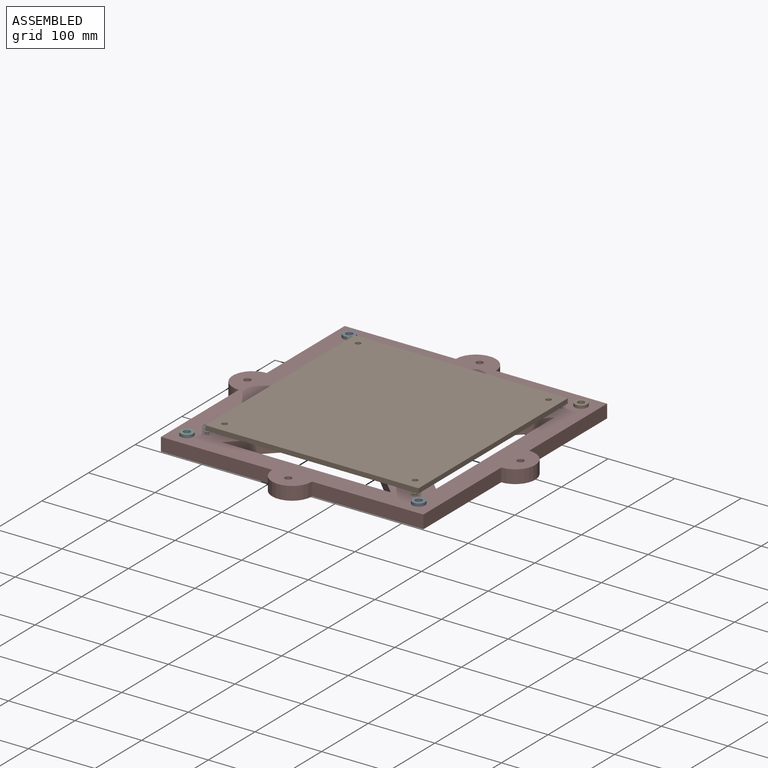
[diagram: assembled view]
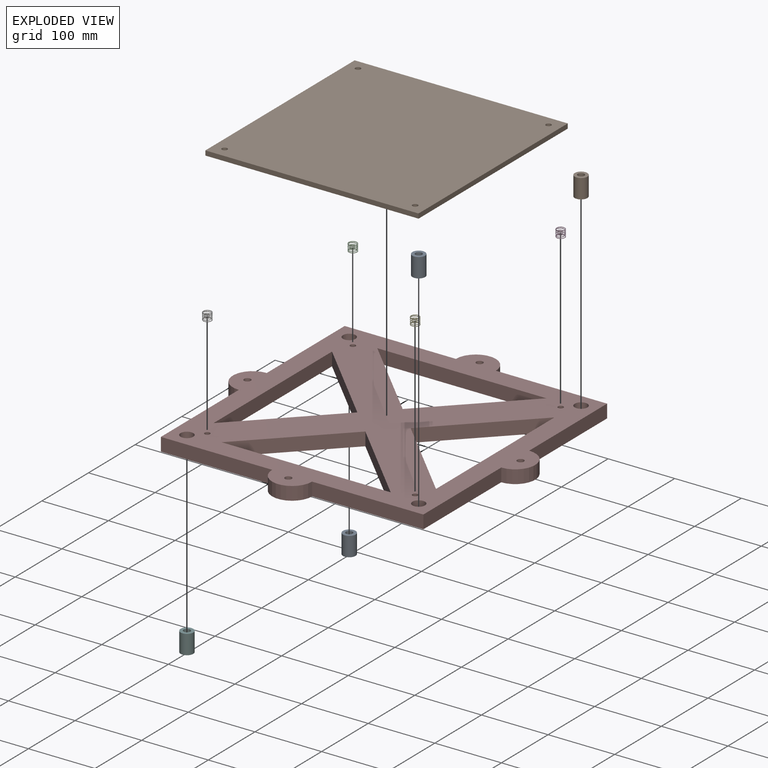
[diagram: exploded view]
GUIDED TOUR — MATED ASSEMBLY (Onshape document 34d37e86194ad98bb5d653fc, AutoMate assembly 34d37e86194ad98bb5d653fc_5240c168538feff160c941ff_869fe06d2fd48d454f6039a9_default)

This assembly has 10 components, labeled P0..P9 below (a component is one placed occurrence of a part; the same part can appear more than once), held together by 9 mates. A mate is a constraint between two components; its type names the relative motion it leaves free:
  FASTENED — locks the two components together rigidly (no relative motion).
Axis/direction vectors are unit vectors and 'through' points are millimeter coordinates, both in the assembly's world frame.

MATES
  1. FASTENED "Fastened 2": P4 <-> P7, direction (0.000, 0.000, 1.000) through (40.16, -156.63, 29.33) mm
  2. FASTENED "Fastened 1": P8 <-> P7, direction (0.000, 0.000, 1.000) through (-289.84, 173.37, 19.33) mm
  3. FASTENED "Fastened 3": P1 <-> P4, direction (0.000, 0.000, -1.000) through (40.16, -156.63, 39.33) mm
  4. FASTENED "Fastened 2": P3 <-> P7, direction (0.000, 0.000, 1.000) through (40.16, 155.37, 29.33) mm
  5. FASTENED "Fastened 1": P5 <-> P7, direction (0.000, 0.000, 1.000) through (-289.84, -174.63, 19.33) mm
  6. FASTENED "Fastened 2": P6 <-> P7, direction (0.000, 0.000, 1.000) through (-271.84, -156.63, 29.33) mm
  7. FASTENED "Fastened 2": P2 <-> P7, direction (0.000, 0.000, 1.000) through (-271.84, 155.37, 29.33) mm
  8. FASTENED "Fastened 1": P9 <-> P7, direction (0.000, 0.000, 1.000) through (58.16, 173.37, 19.33) mm
  9. FASTENED "Fastened 1": P0 <-> P7, direction (0.000, 0.000, 1.000) through (58.16, -174.63, 19.33) mm

ASSEMBLY ORDER
  1. P7 — the base component [order verified]
  2. P8 [order verified]
  3. P5 [order verified]
  4. P9 [order verified]
  5. P0 [order verified]
  6. P4 [order verified]
  7. P3 [order verified]
  8. P6 [order verified]
  9. P2 [order verified]
  10. P1 [order verified]
Order-tag legend:
  [order verified] — this step's position reverses a verified removal order: the component was checked to insert without passing through the ones already placed.

Of the 10 components, 6 carry the full construction recipe — the FeatureScript program that regenerates the part's solid from scratch; the rest are supplied as boundary geometry only.
Each toured component is shown spotlighted twice — in the assembled view, then in the exploded view, where a leader line traces a displaced component back to its assembled socket (saturated green if recipe-attached, orange if geometry-only; every other component desaturated gray) — followed by its recipe or geometry summary and the mates that hold it.
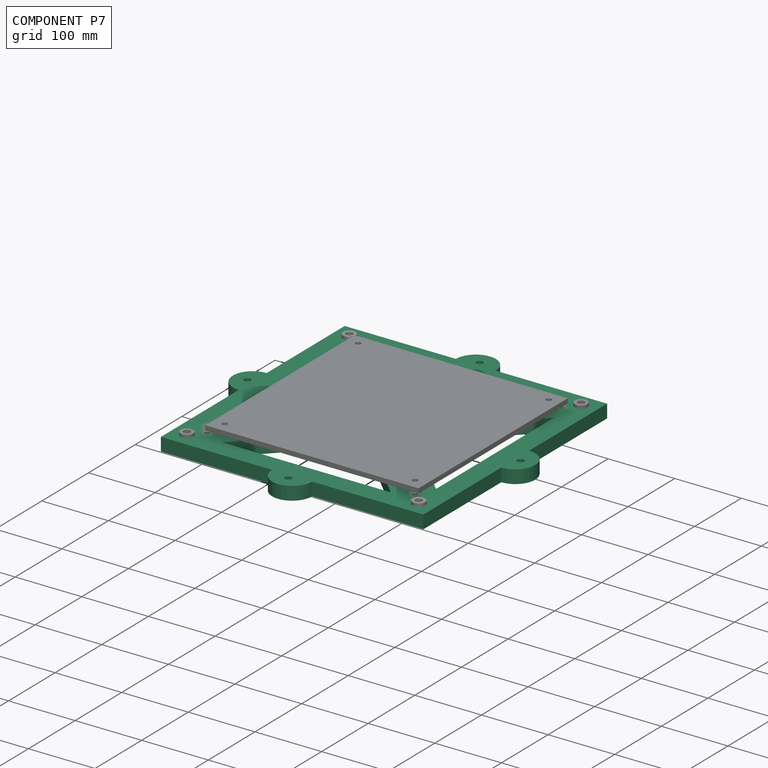
[diagram: component P7 — assembled]
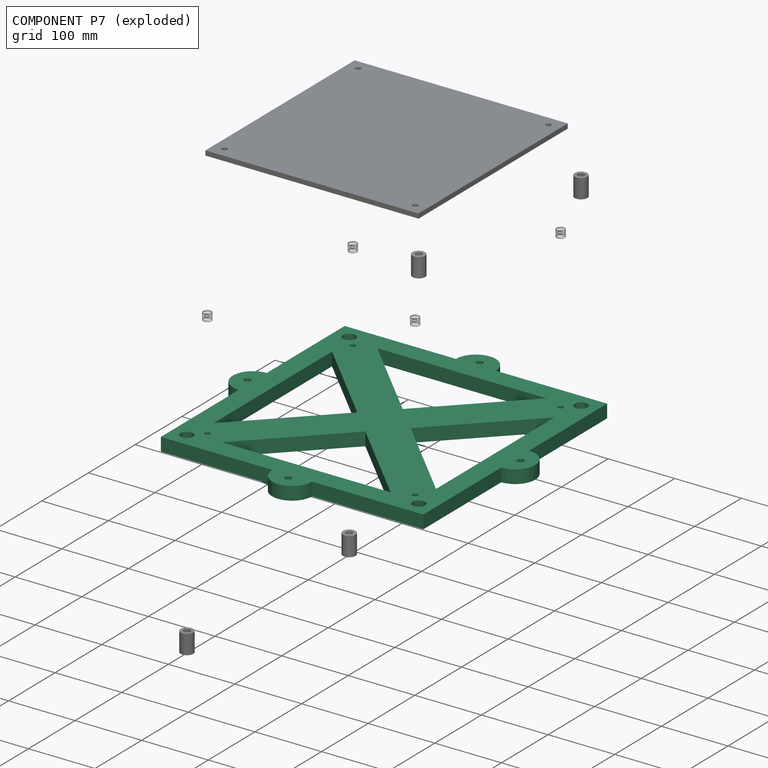
[diagram: component P7 — exploded]
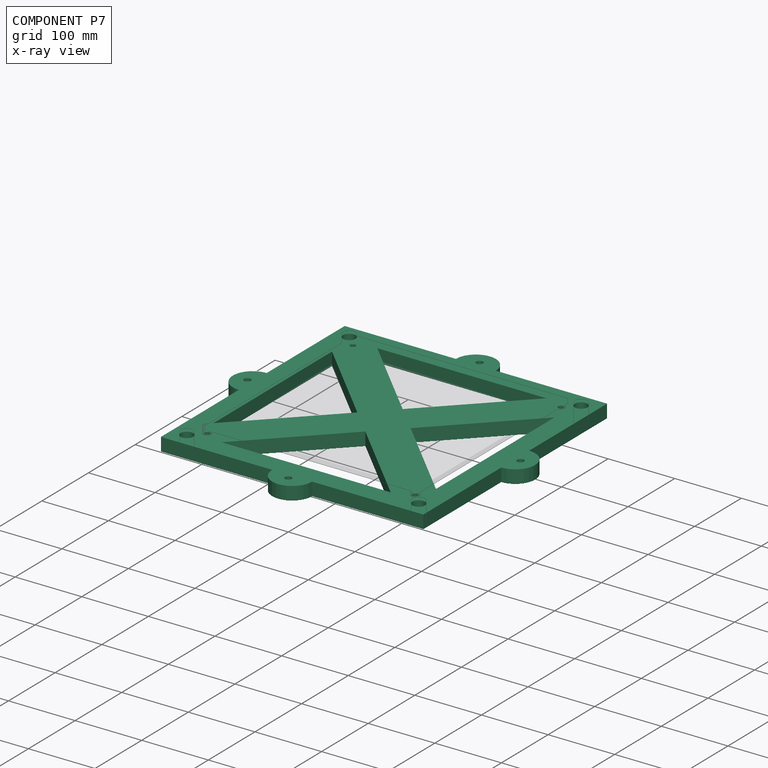
[diagram: component P7 — x-ray view]
COMPONENT P7 — recipe-attached (CADFS 00890142, mesh-verified: the recipe's output STEP matches this component's geometry to below the mesh-comparison resolution (tessellation chordal tolerance ~0.963 mm)).
Held by: FASTENED mate "Fastened 2" to P4; FASTENED mate "Fastened 1" to P8; FASTENED mate "Fastened 2" to P3; FASTENED mate "Fastened 1" to P5; FASTENED mate "Fastened 2" to P6; FASTENED mate "Fastened 2" to P2; FASTENED mate "Fastened 1" to P9; FASTENED mate "Fastened 1" to P0.
Construction recipe (FeatureScript — the CAD program that rebuilds this solid; sketch coordinates are in the units given by the * unit suffixes, e.g. mm):

FeatureScript 1540;
import(path : "onshape/std/geometry.fs", version : "1540.0");
import(path : "onshape/std/common.fs", version : "1540.0");
const mm = millimeter;
const VERTEX = EntityType.VERTEX;
const EDGE = EntityType.EDGE;
const FACE = EntityType.FACE;
const BODY = EntityType.BODY;
function v(x, y){return vector(x, y);}
function OD(order){return orderDisambiguation(order);}
function OSD(set){return originalSetDisambiguation(set);}
function TD(topology){return topologyDisambiguation(topology);}
function TDD(query){return trueDependencyDisambiguation(query);}
function sQuery(a, b, c) {return sketchEntityQuery(a, b, c);}

annotation { "Feature Type Name" : "Feature", "Feature Type Description" : "" }
export const myFeature = defineFeature(function(context is Context, id is Id, definition is map)
    precondition{}
    {
        {
            var Q0;
            Q0=qCreatedBy(makeId("Top.planeOp"),FACE);
            var sketch = newSketch(context, id + "F0", { "sketchPlane" : qUnion([Q0])});
            skLineSegment(sketch, "E0", {"start": v(-167, 127) * mm, "end": v(-127, 167) * mm});
            skLineSegment(sketch, "E1", {"start": v(-127, 167) * mm, "end": v(-127, 197) * mm});
            skLineSegment(sketch, "E2", {"start": v(-127, 197) * mm, "end": v(-197, 197) * mm});
            skLineSegment(sketch, "E3", {"start": v(-197, 197) * mm, "end": v(-197, 127) * mm});
            skLineSegment(sketch, "E4", {"start": v(-197, 127) * mm, "end": v(-167, 127) * mm});
            skCircle(sketch, "E5", {"center": v(-174, 174) * mm, "radius": 9.5 * mm});
            skCircle(sketch, "E6", {"center": v(-156, 156) * mm, "radius": 4 * mm});
            skLineSegment(sketch, "E7.MirrorCS", {"start": v(167, 127) * mm, "end": v(127, 167) * mm});
            skLineSegment(sketch, "E8.MirrorCS", {"start": v(127, 167) * mm, "end": v(127, 197) * mm});
            skLineSegment(sketch, "E9.MirrorCS", {"start": v(127, 197) * mm, "end": v(197, 197) * mm});
            skLineSegment(sketch, "E10.MirrorCS", {"start": v(197, 127) * mm, "end": v(167, 127) * mm});
            skLineSegment(sketch, "E11.MirrorCS", {"start": v(197, 197) * mm, "end": v(197, 127) * mm});
            skCircle(sketch, "E12.MirrorC", {"center": v(174, 174) * mm, "radius": 9.5 * mm});
            skCircle(sketch, "E13.MirrorC", {"center": v(156, 156) * mm, "radius": 4 * mm});
            skLineSegment(sketch, "E14.MirrorCS", {"start": v(127, -167) * mm, "end": v(127, -197) * mm});
            skLineSegment(sketch, "E15.MirrorCS", {"start": v(127, -197) * mm, "end": v(197, -197) * mm});
            skCircle(sketch, "E16.MirrorC", {"center": v(174, -174) * mm, "radius": 9.5 * mm});
            skCircle(sketch, "E17.MirrorC", {"center": v(156, -156) * mm, "radius": 4 * mm});
            skLineSegment(sketch, "E18.MirrorCS", {"start": v(167, -127) * mm, "end": v(127, -167) * mm});
            skLineSegment(sketch, "E19.MirrorCS", {"start": v(-127, -197) * mm, "end": v(-197, -197) * mm});
            skLineSegment(sketch, "E20.MirrorCS", {"start": v(-197, -127) * mm, "end": v(-167, -127) * mm});
            skCircle(sketch, "E21.MirrorC", {"center": v(-174, -174) * mm, "radius": 9.5 * mm});
            skCircle(sketch, "E22.MirrorC", {"center": v(-156, -156) * mm, "radius": 4 * mm});
            skLineSegment(sketch, "E23.MirrorCS", {"start": v(-197, -197) * mm, "end": v(-197, -127) * mm});
            skLineSegment(sketch, "E24.MirrorCS", {"start": v(-127, -167) * mm, "end": v(-127, -197) * mm});
            skLineSegment(sketch, "E25.MirrorCS", {"start": v(197, -127) * mm, "end": v(167, -127) * mm});
            skLineSegment(sketch, "E26.MirrorCS", {"start": v(197, -197) * mm, "end": v(197, -127) * mm});
            skLineSegment(sketch, "E27.MirrorCS", {"start": v(-167, -127) * mm, "end": v(-127, -167) * mm});
            skLineSegment(sketch, "E28", {"start": v(-197, 127) * mm, "end": v(-197, -127) * mm});
            skLineSegment(sketch, "E29", {"start": v(-167, 127) * mm, "end": v(-167, -127) * mm});
            skLineSegment(sketch, "E30", {"start": v(-127, 167) * mm, "end": v(127, 167) * mm});
            skLineSegment(sketch, "E31", {"start": v(-127, 197) * mm, "end": v(127, 197) * mm});
            skLineSegment(sketch, "E32", {"start": v(167, 127) * mm, "end": v(167, -127) * mm});
            skLineSegment(sketch, "E33", {"start": v(197, 127) * mm, "end": v(197, -127) * mm});
            skLineSegment(sketch, "E34", {"start": v(127, -167) * mm, "end": v(-127, -167) * mm});
            skLineSegment(sketch, "E35", {"start": v(-127, -197) * mm, "end": v(127, -197) * mm});
            skLineSegment(sketch, "E36", {"start": v(-167, 127) * mm, "end": v(127, -167) * mm});
            skLineSegment(sketch, "E37", {"start": v(-127, 167) * mm, "end": v(167, -127) * mm});
            skLineSegment(sketch, "E38", {"start": v(127, 167) * mm, "end": v(-167, -127) * mm});
            skLineSegment(sketch, "E39", {"start": v(167, 127) * mm, "end": v(-127, -167) * mm});
            skArc(sketch, "E40", {"start": v(-197, 30) * mm, "mid": v(-227, 0) * mm, "end": v(-197, -30) * mm});
            skArc(sketch, "E41.MirrorCS", {"start": v(197, 30) * mm, "mid": v(227, 0) * mm, "end": v(197, -30) * mm});
            skCircle(sketch, "E42", {"center": v(-205, 0) * mm, "radius": 5 * mm});
            skCircle(sketch, "E43.MirrorC", {"center": v(205, 0) * mm, "radius": 5 * mm});
            skArc(sketch, "E44", {"start": v(30, 197) * mm, "mid": v(0, 227) * mm, "end": v(-30, 197) * mm});
            skCircle(sketch, "E45", {"center": v(0, 205) * mm, "radius": 5 * mm});
            skArc(sketch, "E46.MirrorCS", {"start": v(30, -197) * mm, "mid": v(0, -227) * mm, "end": v(-30, -197) * mm});
            skCircle(sketch, "E47.MirrorC", {"center": v(0, -205) * mm, "radius": 5 * mm});
            skSolve(sketch);
        }
        {
            var Q0;
            Q0=qSketchRegion(id+"F0",true);
            var Q1;
            {var subQ0=sQuery(id+"F0.wireOp",EDGE,"E18.MirrorCS");Q1=makeQuery(id+"F0.imprint","IMPRINT",FACE,{"disambiguationData":[TD([[makeQuery(id+"F0.imprint","IMPRINT",EDGE,{"derivedFrom":subQ0}),-1.0]])]});}
            var Q2;
            {var subQ0=sQuery(id+"F0.wireOp",EDGE,"E27.MirrorCS");Q2=makeQuery(id+"F0.imprint","IMPRINT",FACE,{"disambiguationData":[TD([[makeQuery(id+"F0.imprint","IMPRINT",EDGE,{"derivedFrom":subQ0}),1.0]])]});}
            var Q3;
            {var subQ0=sQuery(id+"F0.wireOp",EDGE,"E0");Q3=makeQuery(id+"F0.imprint","IMPRINT",FACE,{"disambiguationData":[TD([[makeQuery(id+"F0.imprint","IMPRINT",EDGE,{"derivedFrom":subQ0}),-1.0]])]});}
            var Q4;
            {var subQ0=sQuery(id+"F0.wireOp",EDGE,"E38");var subQ1=sQuery(id+"F0.wireOp",EDGE,"E36");var subQ2=makeQuery(id+"F0.imprint","INTERSECT",VERTEX,{"derivedFrom":[subQ1,subQ0]});Q4=makeQuery(id+"F0.imprint","IMPRINT",FACE,{"disambiguationData":[TD([[makeQuery(id+"F0.imprint","IMPRINT",EDGE,{"disambiguationData":[TD([[subQ2,-1.0]])],"derivedFrom":subQ1}),1.0]])]});}
            var Q5;
            {var subQ0=sQuery(id+"F0.wireOp",EDGE,"E7.MirrorCS");Q5=makeQuery(id+"F0.imprint","IMPRINT",FACE,{"disambiguationData":[TD([[makeQuery(id+"F0.imprint","IMPRINT",EDGE,{"derivedFrom":subQ0}),1.0]])]});}
            extrude(context, id + "F1", {"entities" : qUnion([Q0, Q1, Q2, Q3, Q4, Q5]), "depth" : 20 * mm, "offsetDistance" : 25 * mm});
        }
    });
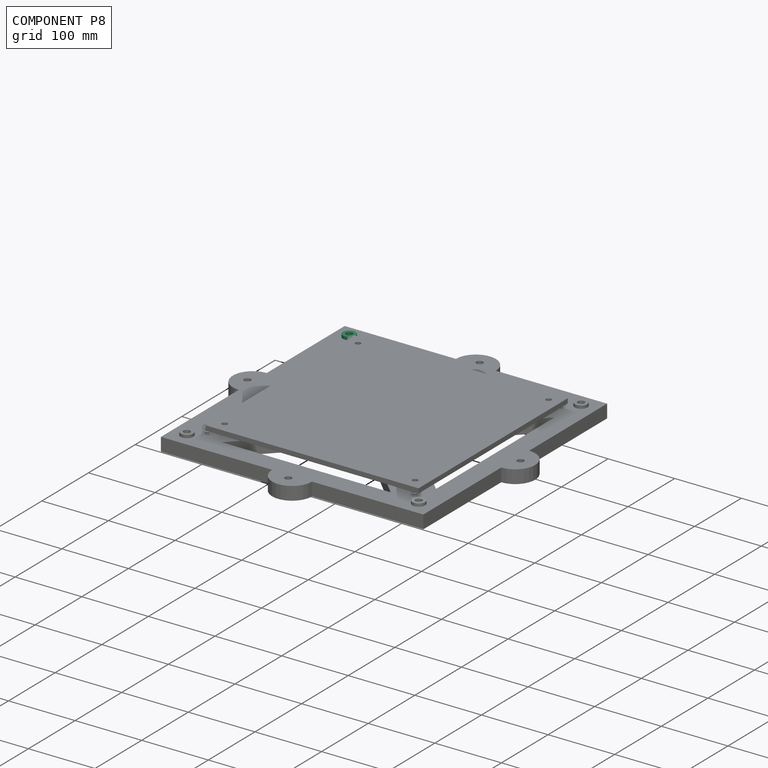
[diagram: component P8 — assembled]
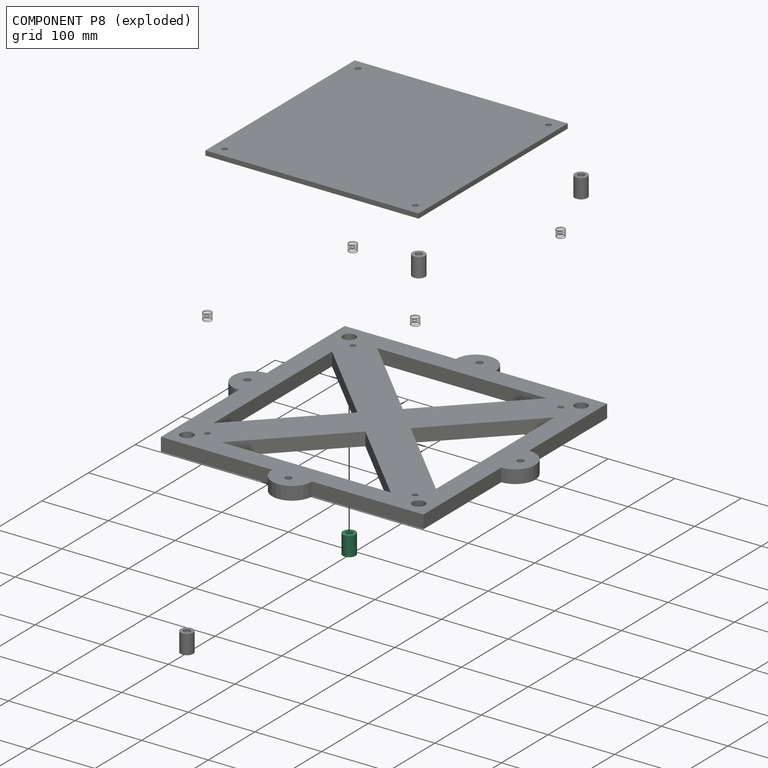
[diagram: component P8 — exploded]
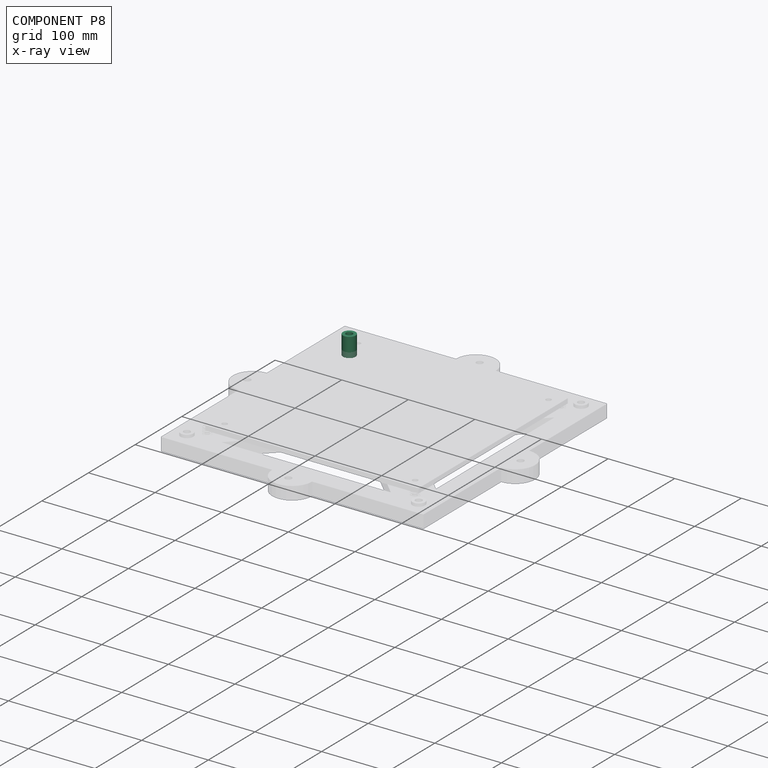
[diagram: component P8 — x-ray view]
COMPONENT P8 — same part as P0 (CADFS 00890148); its construction recipe is shown at P0.
Held by: FASTENED mate "Fastened 1" to P7.
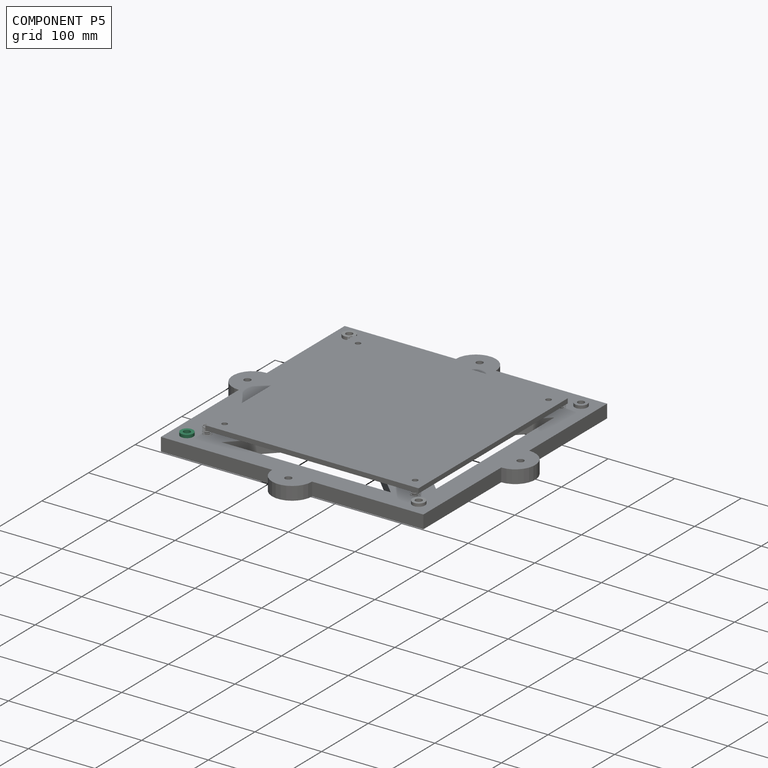
[diagram: component P5 — assembled]
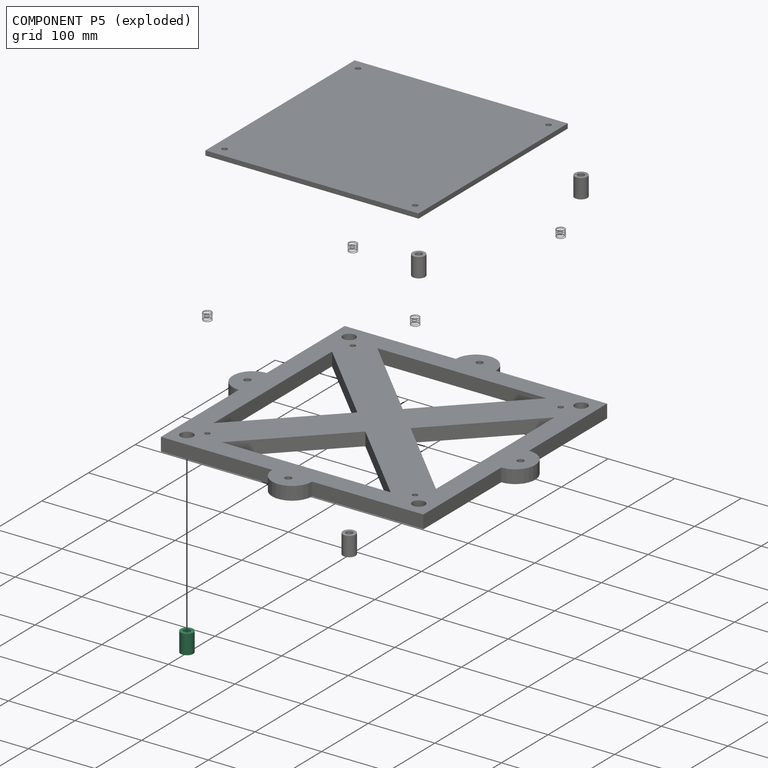
[diagram: component P5 — exploded]
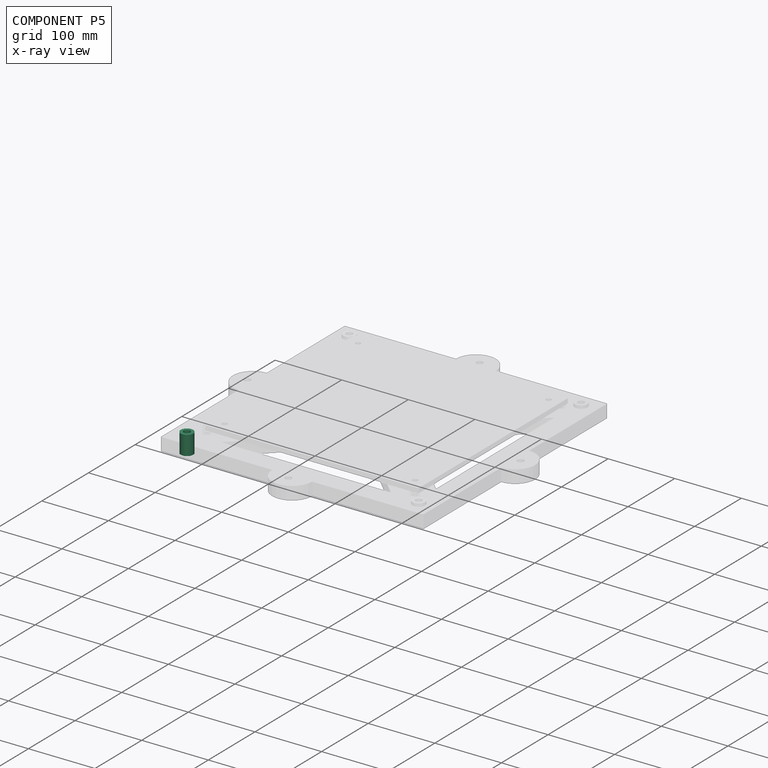
[diagram: component P5 — x-ray view]
COMPONENT P5 — same part as P0 (CADFS 00890148); its construction recipe is shown at P0.
Held by: FASTENED mate "Fastened 1" to P7.
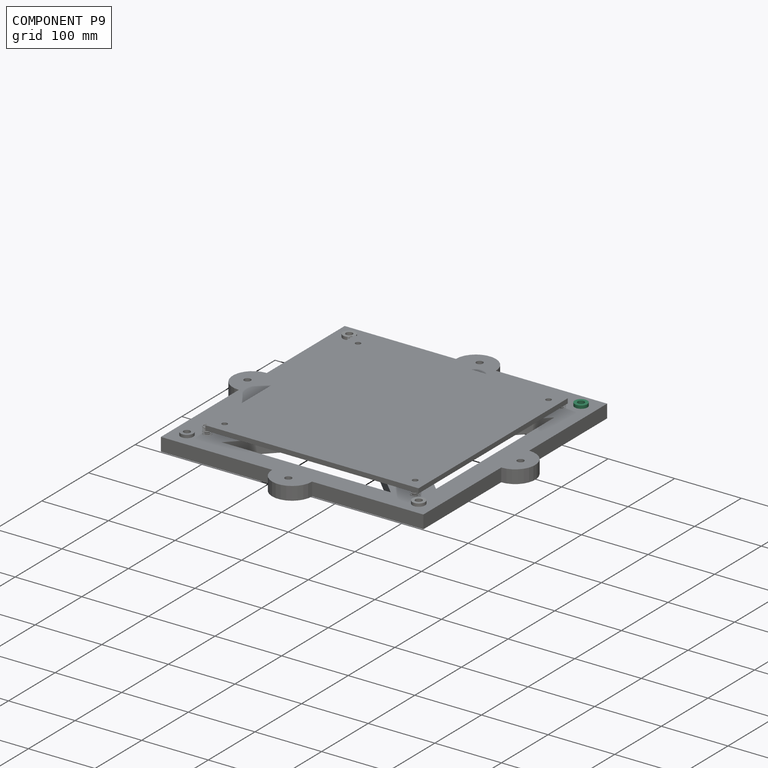
[diagram: component P9 — assembled]
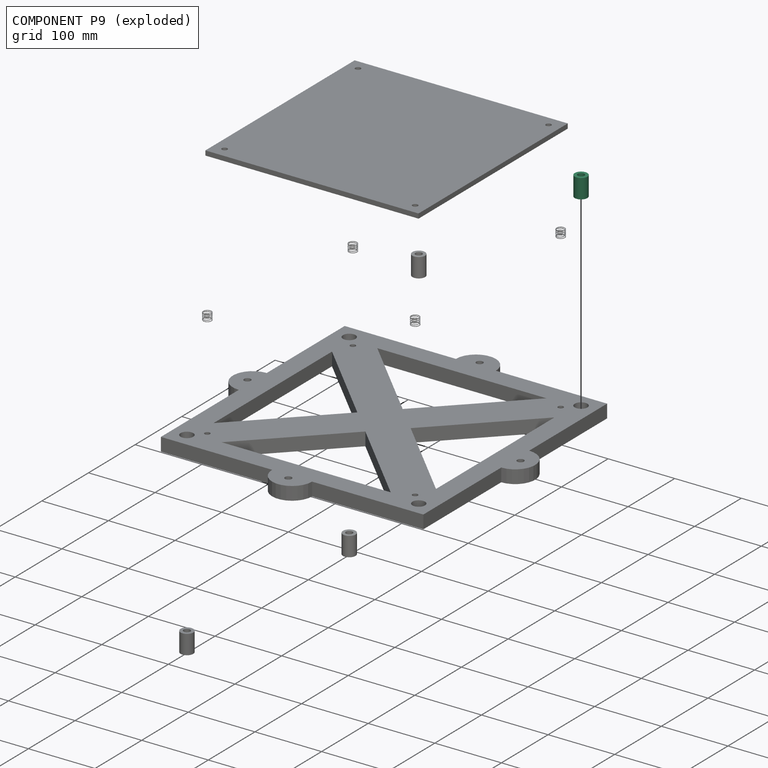
[diagram: component P9 — exploded]
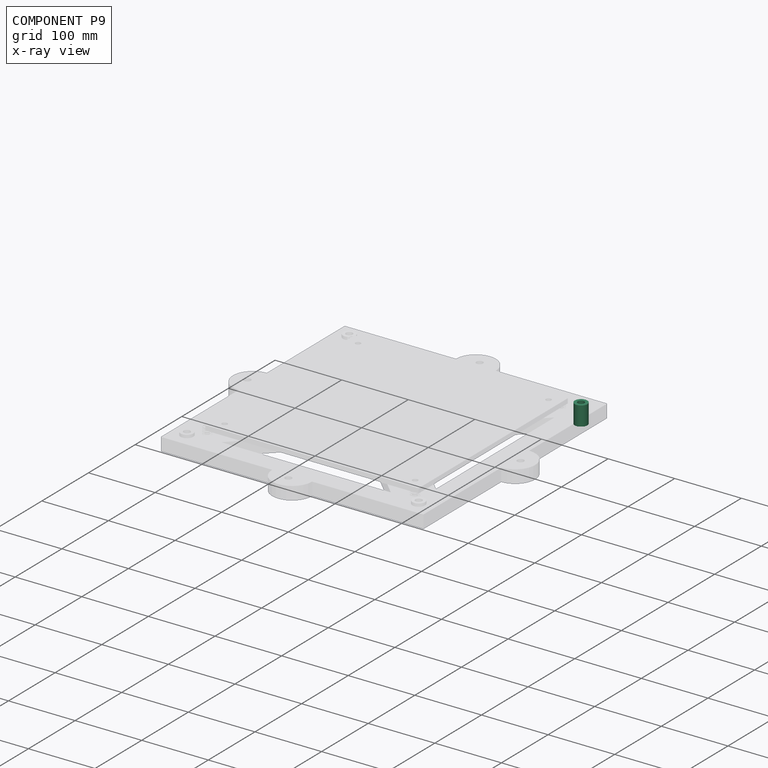
[diagram: component P9 — x-ray view]
COMPONENT P9 — same part as P0 (CADFS 00890148); its construction recipe is shown at P0.
Held by: FASTENED mate "Fastened 1" to P7.
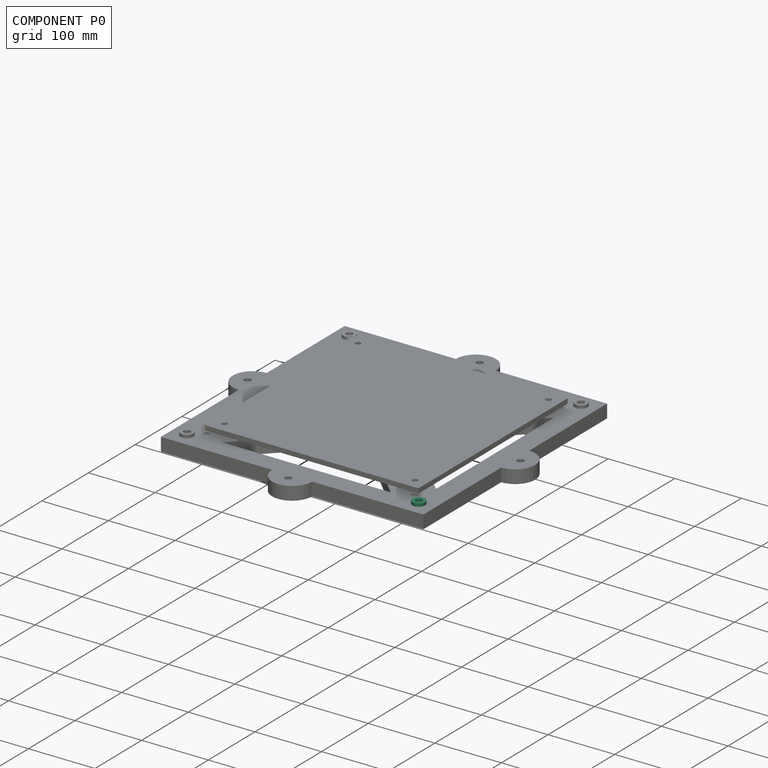
[diagram: component P0 — assembled]
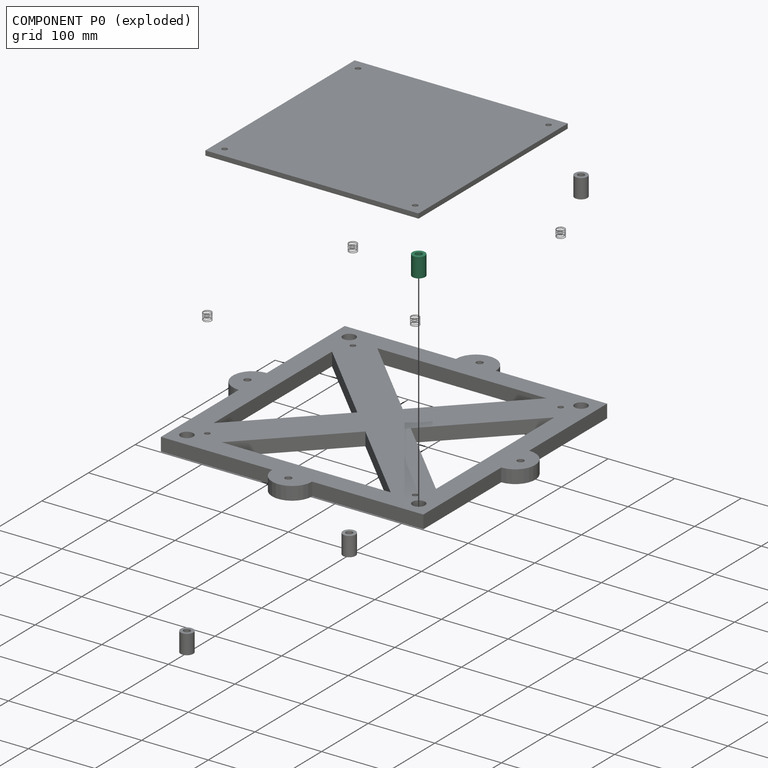
[diagram: component P0 — exploded]
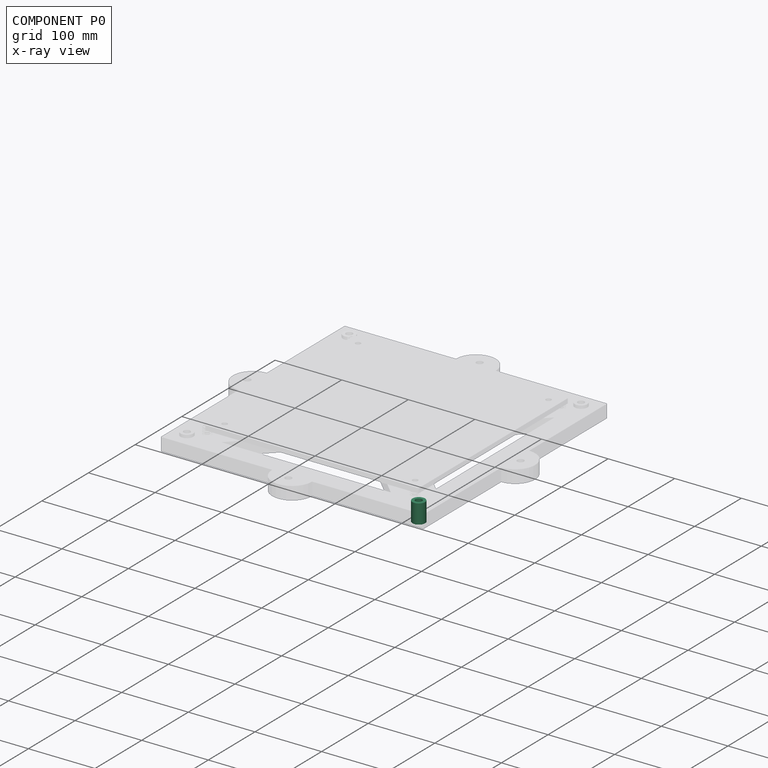
[diagram: component P0 — x-ray view]
COMPONENT P0 — recipe-attached (CADFS 00890148, mesh-verified: the recipe's output STEP matches this component's geometry to below the mesh-comparison resolution (tessellation chordal tolerance ~0.0593 mm)).
Held by: FASTENED mate "Fastened 1" to P7.
Construction recipe (FeatureScript — the CAD program that rebuilds this solid; sketch coordinates are in the units given by the * unit suffixes, e.g. mm):

FeatureScript 1540;
import(path : "onshape/std/geometry.fs", version : "1540.0");
import(path : "onshape/std/common.fs", version : "1540.0");
const mm = millimeter;
const VERTEX = EntityType.VERTEX;
const EDGE = EntityType.EDGE;
const FACE = EntityType.FACE;
const BODY = EntityType.BODY;
function v(x, y){return vector(x, y);}
function OD(order){return orderDisambiguation(order);}
function OSD(set){return originalSetDisambiguation(set);}
function TD(topology){return topologyDisambiguation(topology);}
function TDD(query){return trueDependencyDisambiguation(query);}
function sQuery(a, b, c) {return sketchEntityQuery(a, b, c);}

annotation { "Feature Type Name" : "Feature", "Feature Type Description" : "" }
export const myFeature = defineFeature(function(context is Context, id is Id, definition is map)
    precondition{}
    {
        {
            var Q0;
            Q0=qCreatedBy(makeId("Top.planeOp"),FACE);
            var sketch = newSketch(context, id + "F0", { "sketchPlane" : qUnion([Q0])});
            skCircle(sketch, "E0", {"center": v(0, 0) * mm, "radius": 9.5 * mm});
            skCircle(sketch, "E1", {"center": v(0, 0) * mm, "radius": 5 * mm});
            skSolve(sketch);
        }
        {
            var Q0;
            Q0=qSketchRegion(id+"F0",true);
            extrude(context, id + "F1", {"entities" : qUnion([Q0]), "depth" : 29 * mm, "offsetDistance" : 25 * mm});
        }
    });
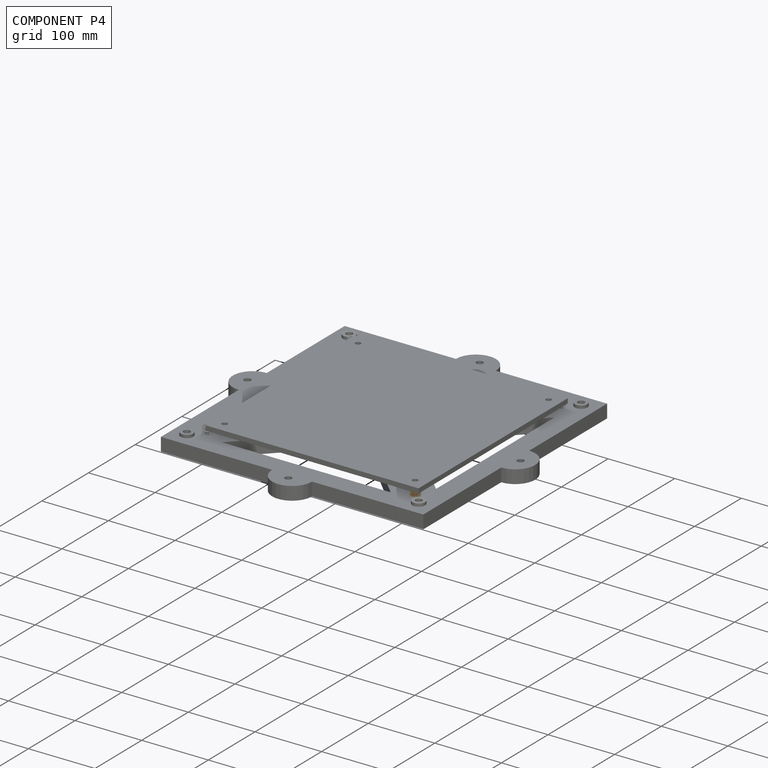
[diagram: component P4 — assembled]
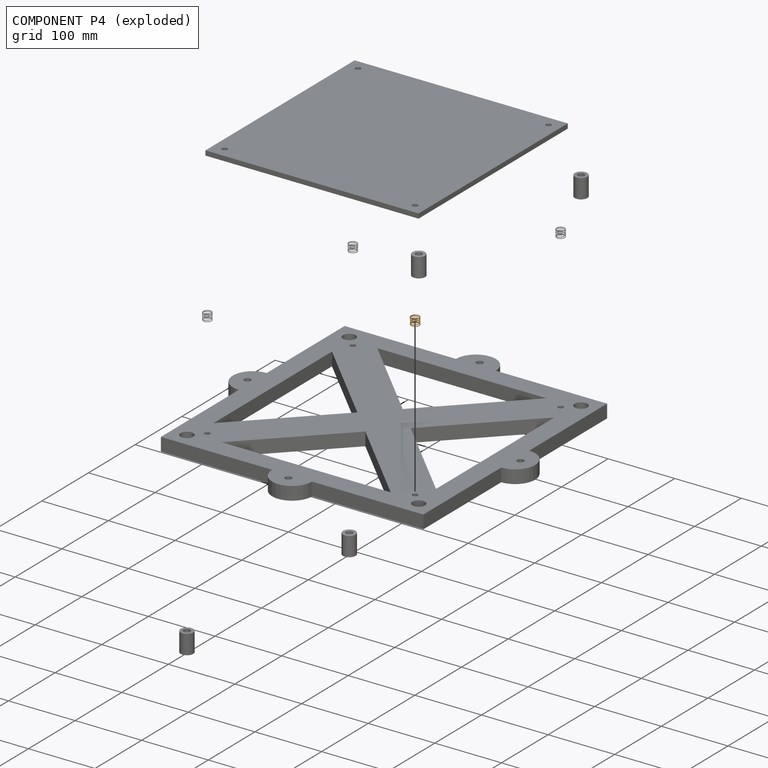
[diagram: component P4 — exploded]
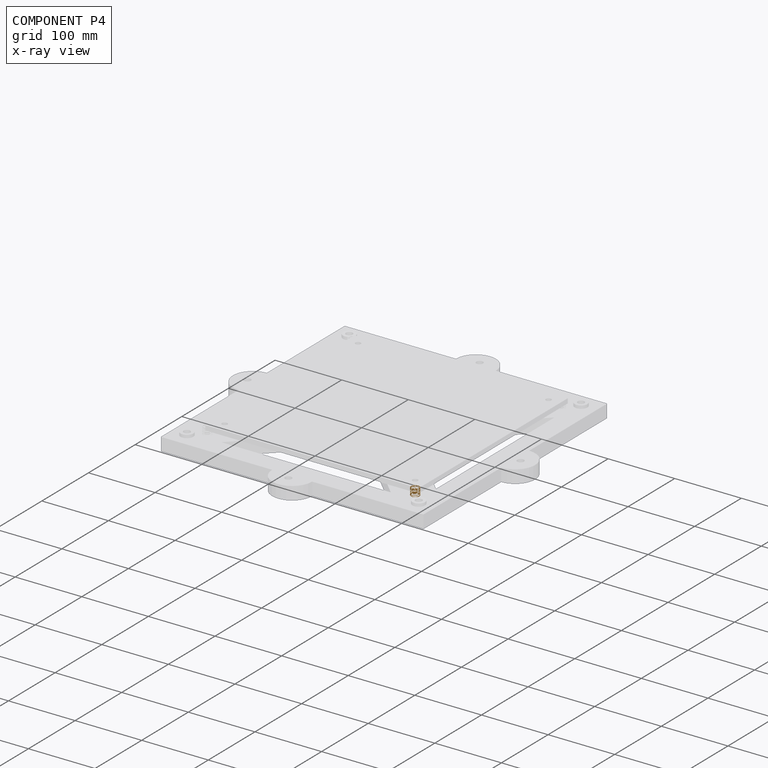
[diagram: component P4 — x-ray view]
COMPONENT P4 — geometry summary (no construction recipe available for this part):
  bounding box: 14.1 x 14.1 x 11.0 mm
  B-rep topology: 1 solid, 3 faces, 24 edges
  volume: 165 mm^3 (8% of its bounding box)
  symmetry: 2-fold rotationally symmetric about the x axis
Held by: FASTENED mate "Fastened 2" to P7; FASTENED mate "Fastened 3" to P1.
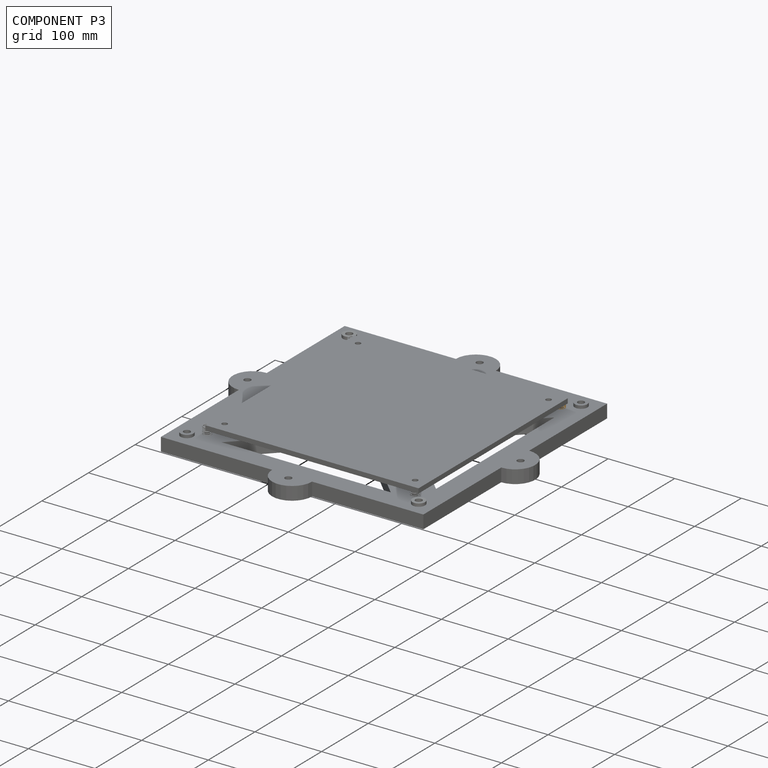
[diagram: component P3 — assembled]
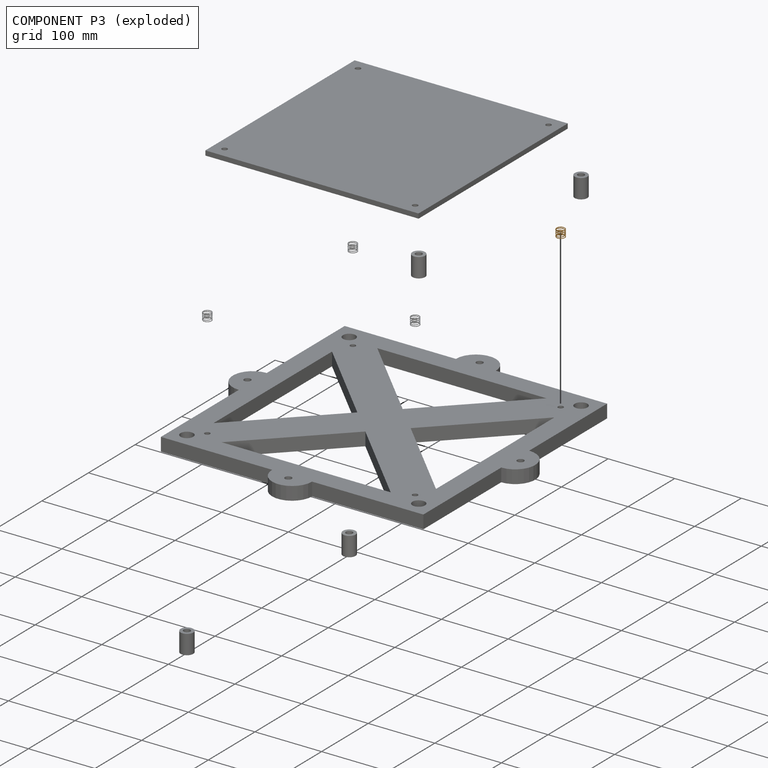
[diagram: component P3 — exploded]
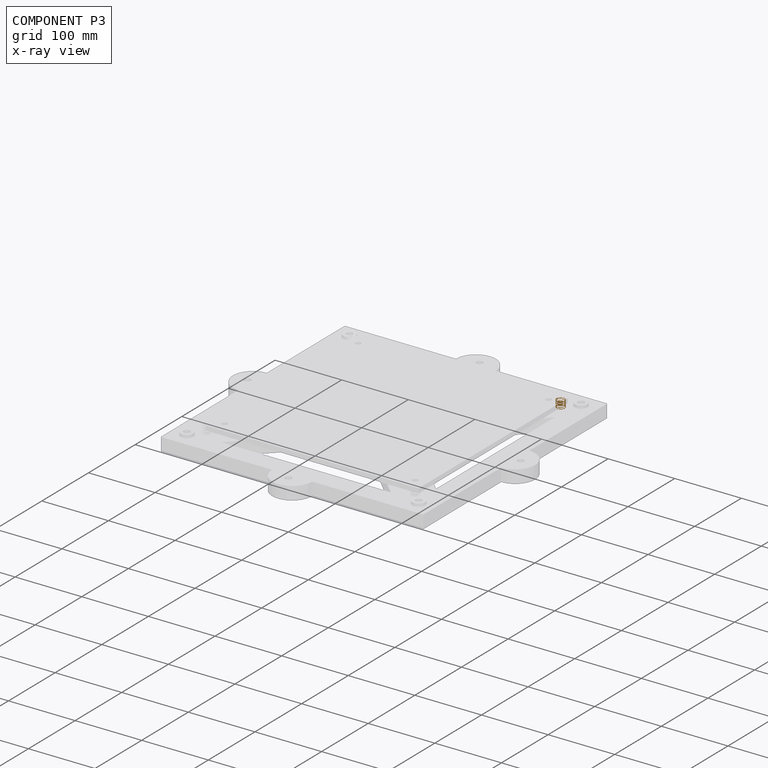
[diagram: component P3 — x-ray view]
COMPONENT P3 — geometry summary (no construction recipe available for this part):
  bounding box: 14.1 x 14.1 x 11.0 mm
  B-rep topology: 1 solid, 3 faces, 24 edges
  volume: 165 mm^3 (8% of its bounding box)
  symmetry: 2-fold rotationally symmetric about the x axis
Held by: FASTENED mate "Fastened 2" to P7.
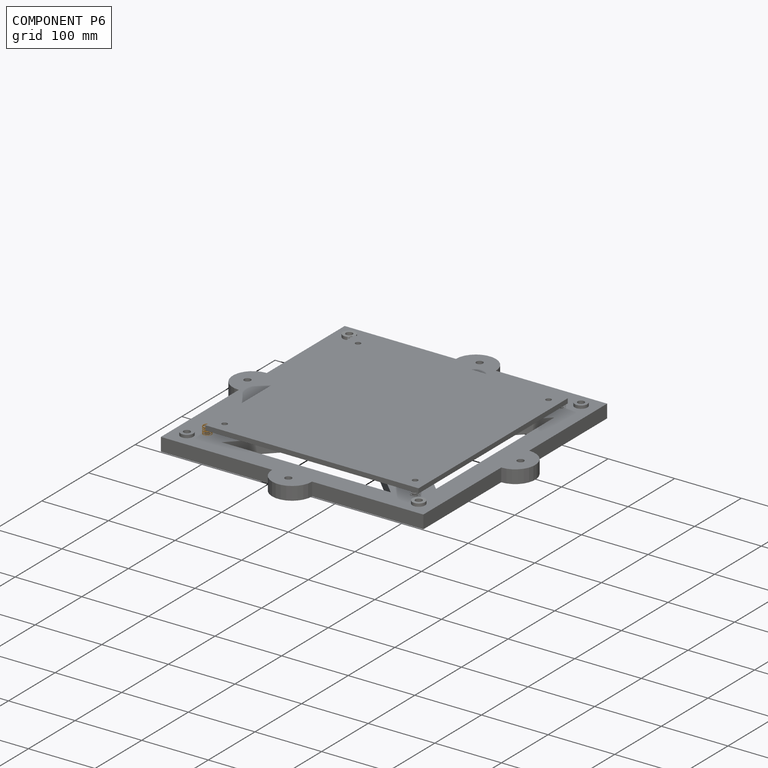
[diagram: component P6 — assembled]
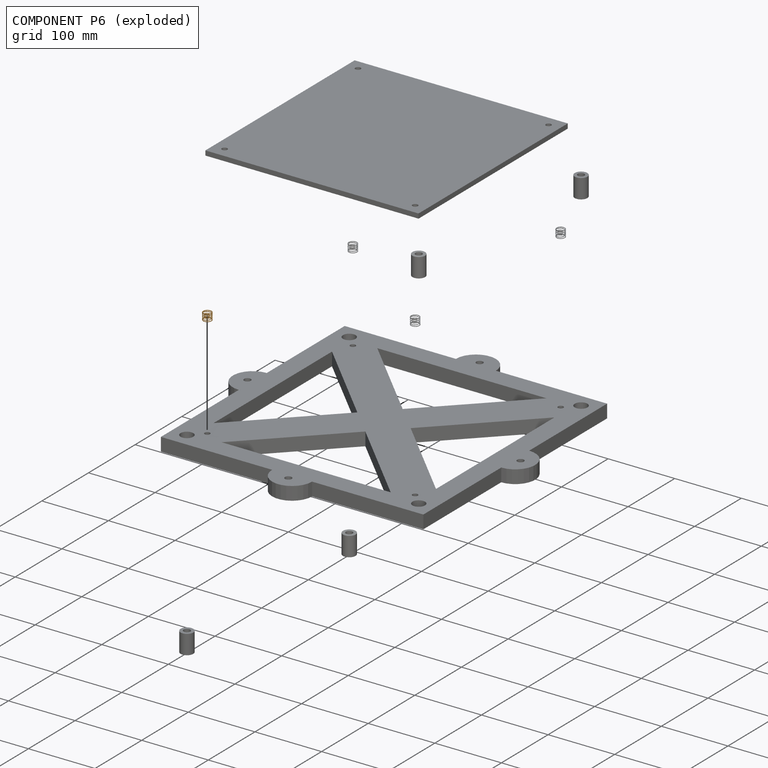
[diagram: component P6 — exploded]
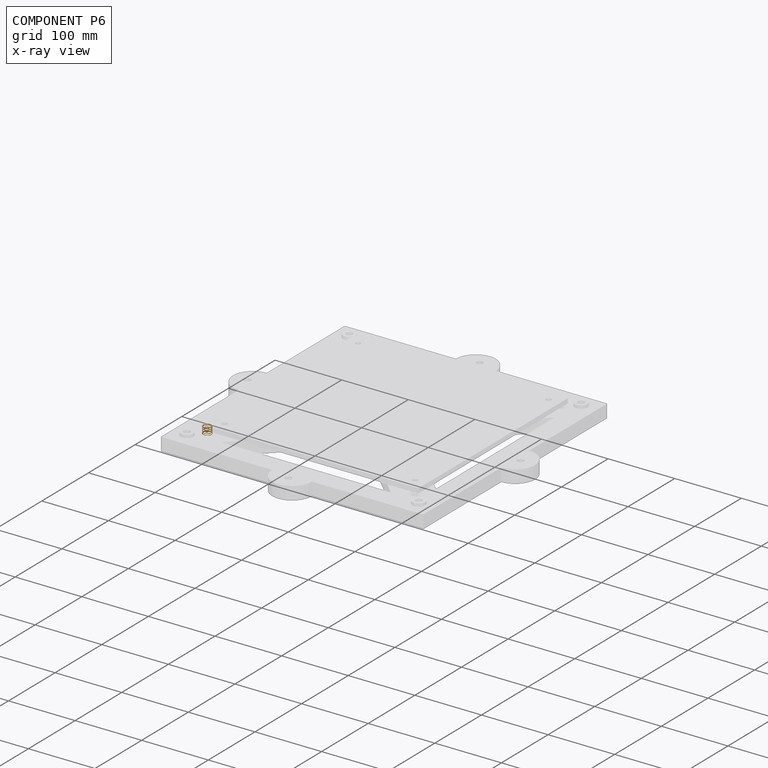
[diagram: component P6 — x-ray view]
COMPONENT P6 — geometry summary (no construction recipe available for this part):
  bounding box: 14.1 x 14.1 x 11.0 mm
  B-rep topology: 1 solid, 3 faces, 24 edges
  volume: 165 mm^3 (8% of its bounding box)
  symmetry: 2-fold rotationally symmetric about the x axis
Held by: FASTENED mate "Fastened 2" to P7.
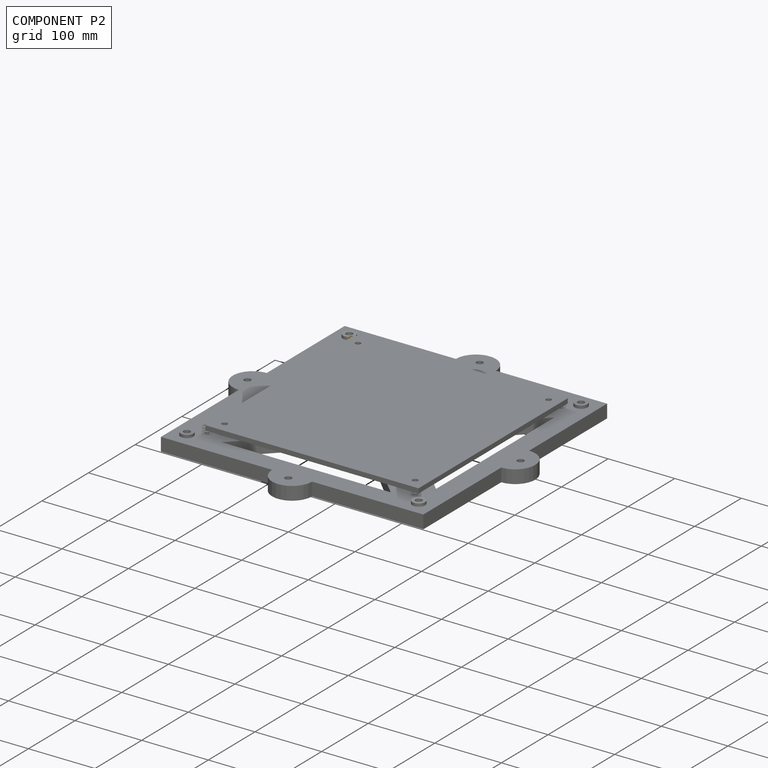
[diagram: component P2 — assembled]
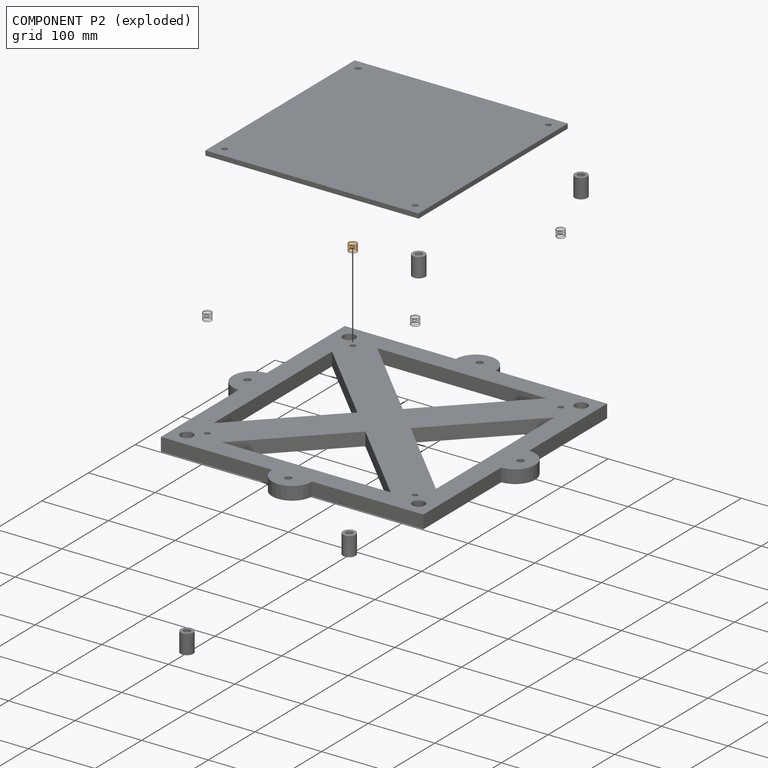
[diagram: component P2 — exploded]
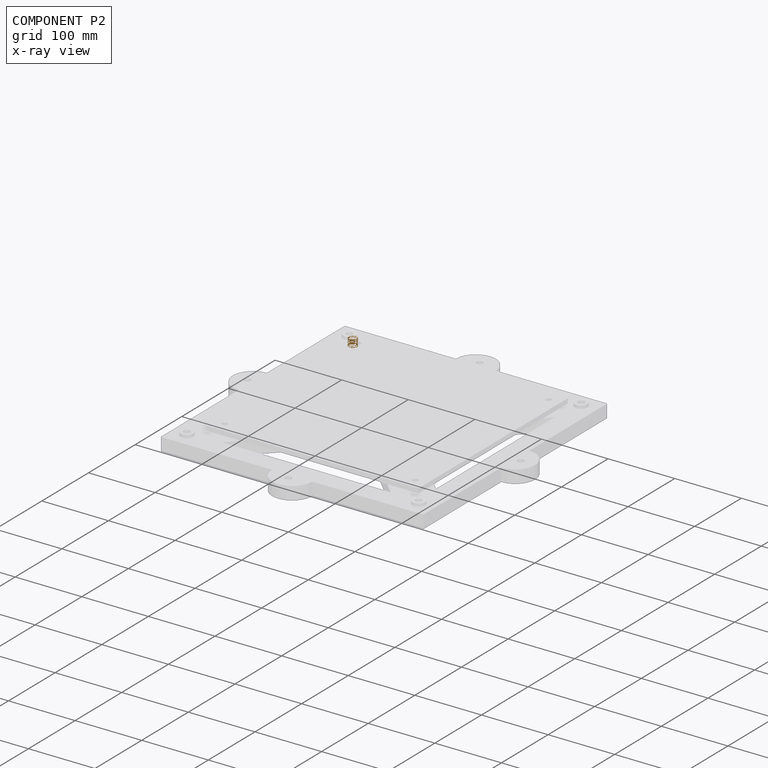
[diagram: component P2 — x-ray view]
COMPONENT P2 — geometry summary (no construction recipe available for this part):
  bounding box: 14.1 x 14.1 x 11.0 mm
  B-rep topology: 1 solid, 3 faces, 24 edges
  volume: 165 mm^3 (8% of its bounding box)
  symmetry: 2-fold rotationally symmetric about the x axis
Held by: FASTENED mate "Fastened 2" to P7.
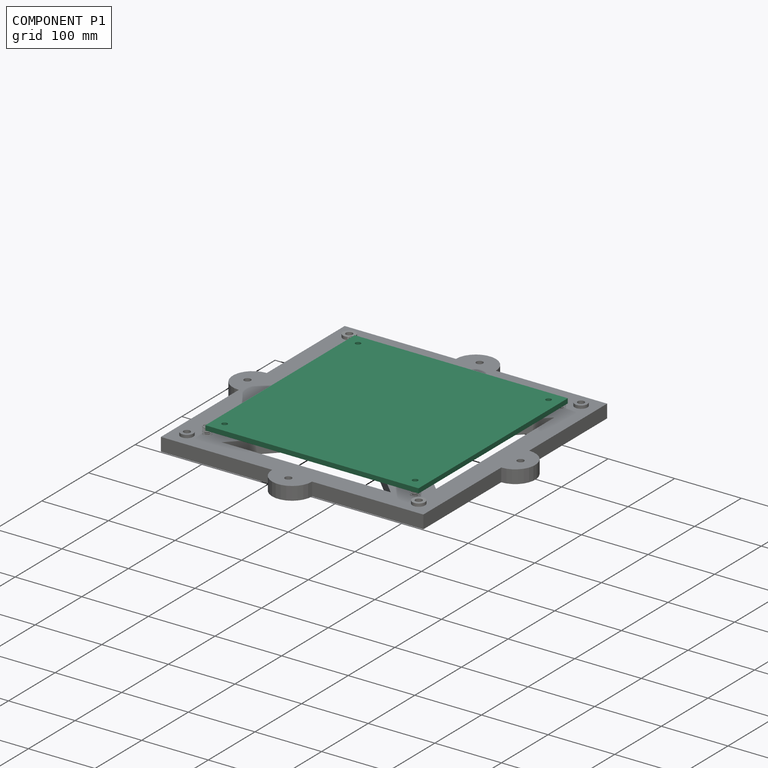
[diagram: component P1 — assembled]
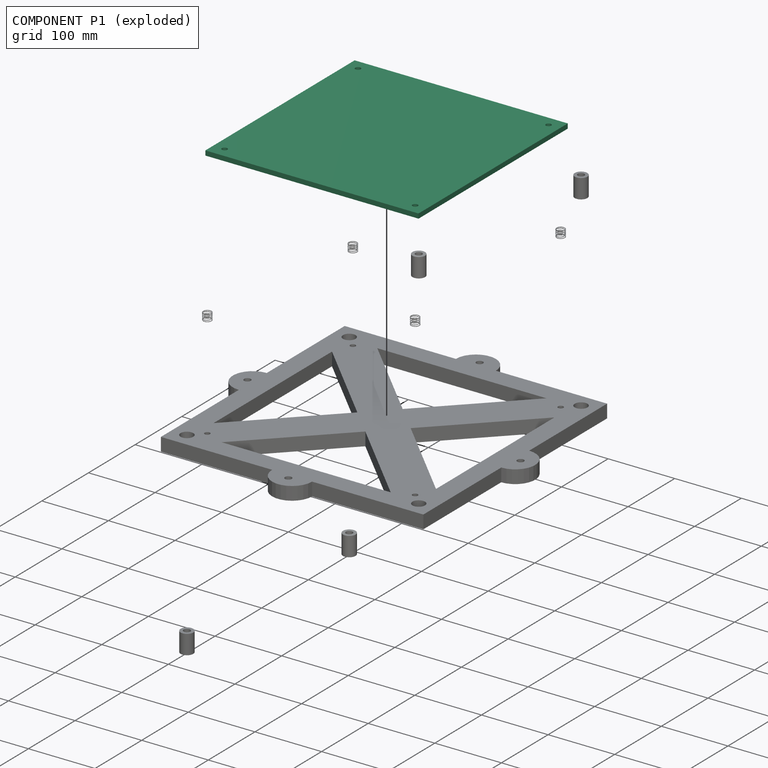
[diagram: component P1 — exploded]
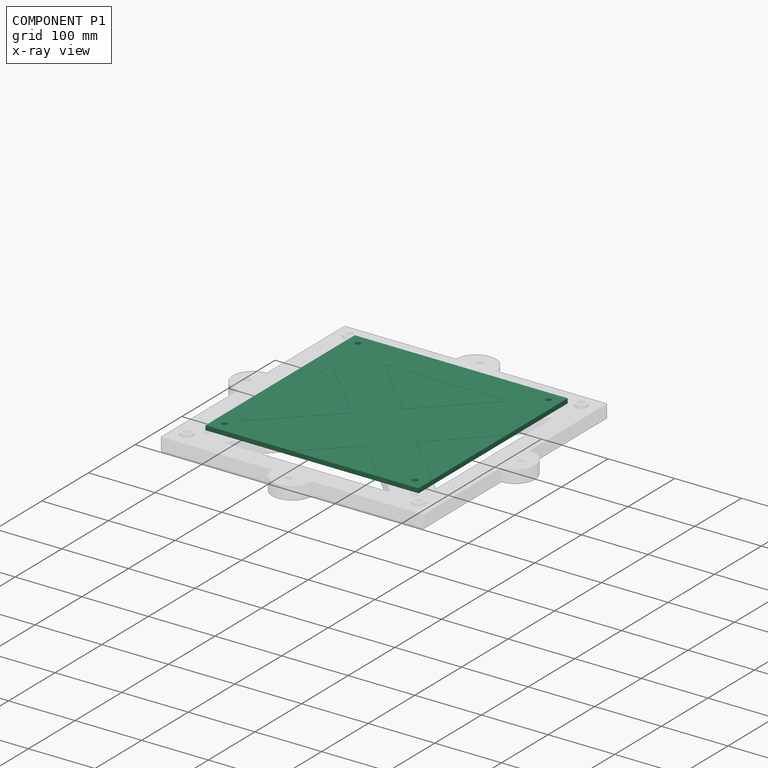
[diagram: component P1 — x-ray view]
COMPONENT P1 — recipe-attached (CADFS 00890115, mesh-verified: the recipe's output STEP matches this component's geometry to below the mesh-comparison resolution (tessellation chordal tolerance ~0.679 mm)).
Held by: FASTENED mate "Fastened 3" to P4.
Construction recipe (FeatureScript — the CAD program that rebuilds this solid; sketch coordinates are in the units given by the * unit suffixes, e.g. mm):

FeatureScript 1540;
import(path : "onshape/std/geometry.fs", version : "1540.0");
import(path : "onshape/std/common.fs", version : "1540.0");
const mm = millimeter;
const VERTEX = EntityType.VERTEX;
const EDGE = EntityType.EDGE;
const FACE = EntityType.FACE;
const BODY = EntityType.BODY;
function v(x, y){return vector(x, y);}
function OD(order){return orderDisambiguation(order);}
function OSD(set){return originalSetDisambiguation(set);}
function TD(topology){return topologyDisambiguation(topology);}
function TDD(query){return trueDependencyDisambiguation(query);}
function sQuery(a, b, c) {return sketchEntityQuery(a, b, c);}

annotation { "Feature Type Name" : "Feature", "Feature Type Description" : "" }
export const myFeature = defineFeature(function(context is Context, id is Id, definition is map)
    precondition{}
    {
        {
            var Q0;
            Q0=qCreatedBy(makeId("Top.planeOp"),FACE);
            var sketch = newSketch(context, id + "F0", { "sketchPlane" : qUnion([Q0])});
            skLineSegment(sketch, "E0.bottom", {"start": v(-150, 150) * mm, "end": v(150, 150) * mm});
            skLineSegment(sketch, "E0.top", {"start": v(-150, -150) * mm, "end": v(150, -150) * mm});
            skLineSegment(sketch, "E0.left", {"start": v(-150, 150) * mm, "end": v(-150, -150) * mm});
            skLineSegment(sketch, "E0.right", {"start": v(150, 150) * mm, "end": v(150, -150) * mm});
            skPoint(sketch, "E0.middle", {"position": v(0, 0) * mm});
            skLineSegment(sketch, "E1.left", {"start": v(-150, 150) * mm, "end": v(-150, 150) * mm});
            skLineSegment(sketch, "E1.right", {"start": v(150, 150) * mm, "end": v(150, 150) * mm});
            skLineSegment(sketch, "E2.bottom", {"start": v(-160, 160) * mm, "end": v(160, 160) * mm});
            skLineSegment(sketch, "E2.top", {"start": v(-160, -160) * mm, "end": v(160, -160) * mm});
            skLineSegment(sketch, "E2.left", {"start": v(-160, 160) * mm, "end": v(-160, -160) * mm});
            skLineSegment(sketch, "E2.right", {"start": v(160, 160) * mm, "end": v(160, -160) * mm});
            skSolve(sketch);
        }
        {
            var Q0;
            Q0=makeQuery(id+"F0.imprint","IMPRINT",FACE,{"disambiguationData":[TD([[makeQuery(id+"F0.imprint","IMPRINT",EDGE,{"derivedFrom":sQuery(id+"F0.wireOp",EDGE,"E0.top")}),-1.0]])]});
            var Q1;
            Q1=makeQuery(id+"F0.imprint","IMPRINT",FACE,{"disambiguationData":[TD([[makeQuery(id+"F0.imprint","IMPRINT",EDGE,{"derivedFrom":sQuery(id+"F0.wireOp",EDGE,"E0.top")}),1.0]])]});
            extrude(context, id + "F1", {"entities" : qUnion([Q0, Q1]), "depth" : 7 * mm, "offsetDistance" : 25 * mm});
        }
        {
            var Q0;
            Q0=makeQuery(id+"F0.imprint","IMPRINT",FACE,{"disambiguationData":[TD([[makeQuery(id+"F0.imprint","IMPRINT",EDGE,{"derivedFrom":sQuery(id+"F0.wireOp",EDGE,"E0.top")}),1.0]])]});
            extrude(context, id + "F2", {"entities" : qUnion([Q0]), "operationType" : NewBodyOperationType.ADD, "oppositeDirection" : true, "depth" : 3 * mm, "offsetDistance" : 25 * mm});
        }
        {
            var Q0;
            Q0=qCreatedBy(makeId("Top.planeOp"),FACE);
            var sketch = newSketch(context, id + "F3", { "sketchPlane" : qUnion([Q0])});
            skCircle(sketch, "E3", {"center": v(-143, 143) * mm, "radius": 4 * mm});
            skCircle(sketch, "E4.MirrorC", {"center": v(143, 143) * mm, "radius": 4 * mm});
            skCircle(sketch, "E5.MirrorC", {"center": v(143, -143) * mm, "radius": 4 * mm});
            skCircle(sketch, "E6.MirrorC", {"center": v(-143, -143) * mm, "radius": 4 * mm});
            skSolve(sketch);
        }
        {
            var Q0;
            Q0=qSketchRegion(id+"F3",true);
            extrude(context, id + "F4", {"entities" : qUnion([Q0]), "operationType" : NewBodyOperationType.REMOVE, "depth" : 15 * mm, "offsetDistance" : 25 * mm, "symmetric" : true});
        }
    });
PROVENANCE & LICENSES
Assembly (occurrences, transforms, mates, per-part STEP geometry): AutoMate dataset, Zenodo record 7776208, CC0.
Construction recipes: CADFS (HuggingFace VladPyatov/CADFS, CC-BY-4.0, layered over the ABC dataset), FeatureScript reconstruction programs keyed by ABC model id.
Join: ABC meta listings map ABC model id -> Onshape documentId; within a shared document, parts are matched by geometric signature (bounding-box dims + volume at 0.1% relative tolerance, exact B-rep face/solid counts).
Verification: 6 of this assembly's 10 components carry a recipe attachment, and every attachment is mesh-verified: the CADFS STEP and the AutoMate member STEP were compared as meshes in their shared local frame (symmetric sampled-point-to-mesh distance); worst across the 6 attachments: below the mesh-comparison resolution (tessellation chordal tolerance ~0.963 mm) on a 642 mm part.
Renders: orthographic iso camera (az 35 / el 25); the floor grid conveys scale (grid pitch printed in each image; no ruler). In the exploded view each component is displaced by its stored offset vector: the offsets alone carry the explosion direction (mate normal/axis signs are not orientation cues and do not encode it), and separation distances are assigned per mate-chain, not proportionally to assembly-order depth.
